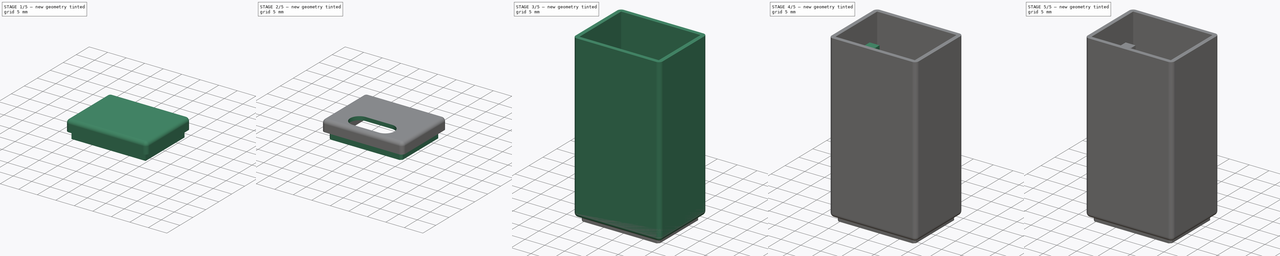
[diagram: build sequence overview — one tinted view per stage of 5, left to right]
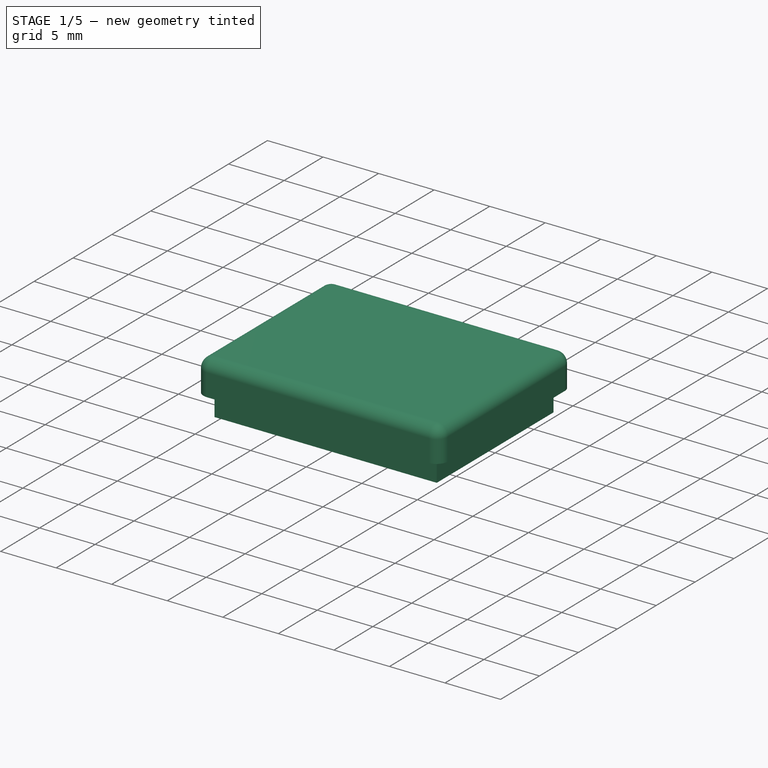
[diagram: stage 1 of 5 — iso view after this stage's code; geometry added in this stage tinted green]
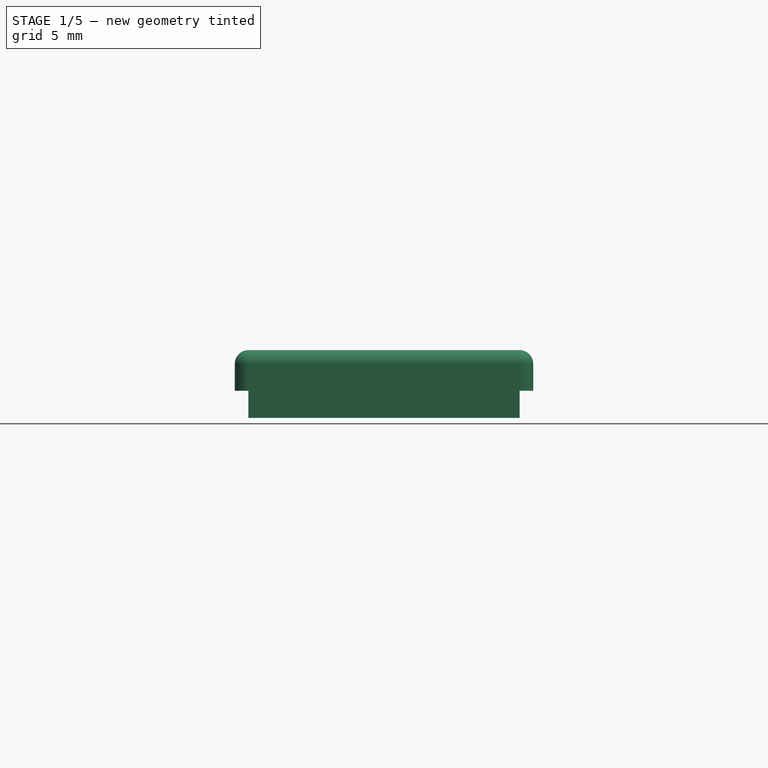
[diagram: stage 1 of 5 — front view after this stage's code; geometry added in this stage tinted green]
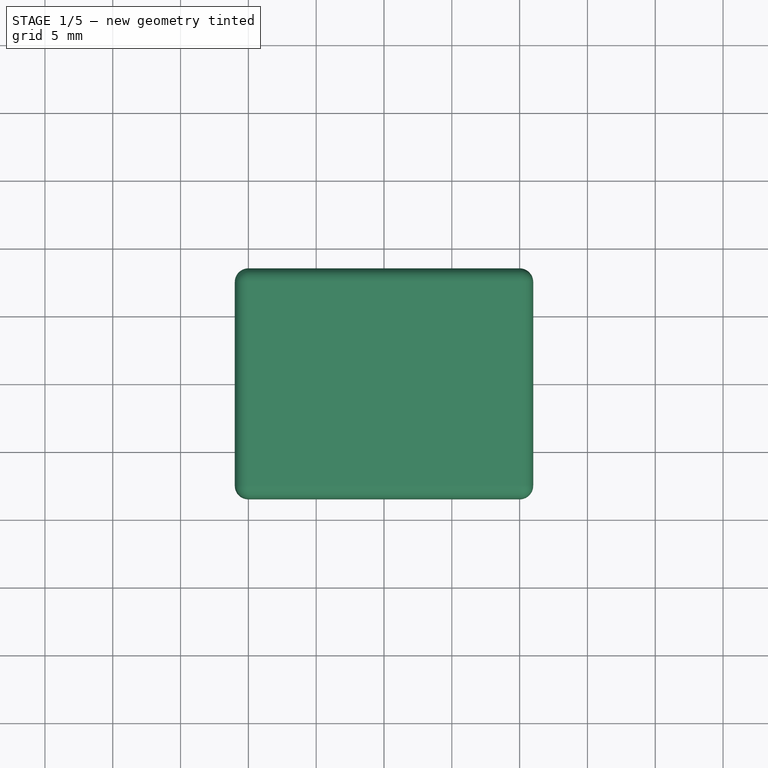
[diagram: stage 1 of 5 — top view after this stage's code; geometry added in this stage tinted green]
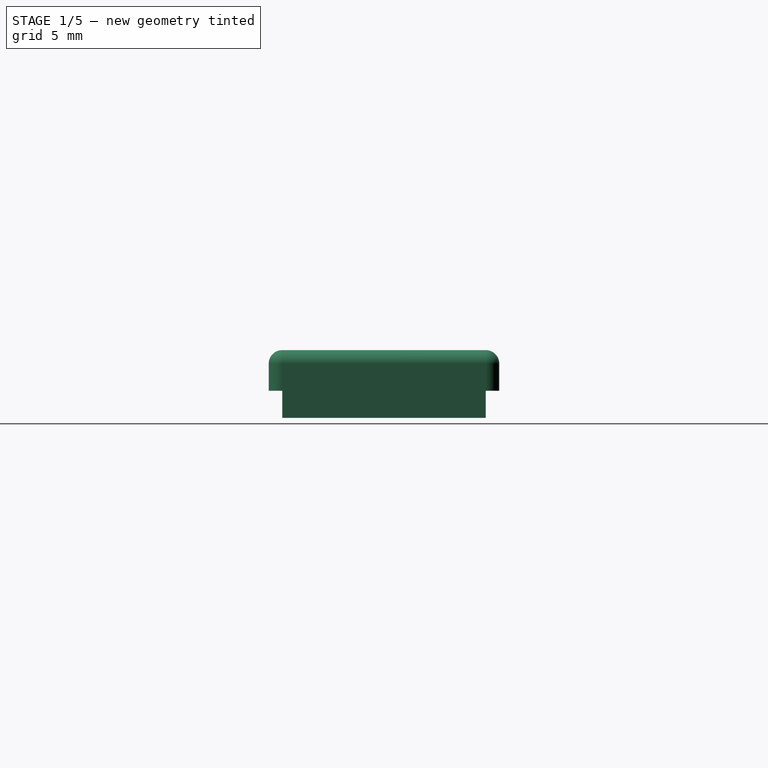
[diagram: stage 1 of 5 — right view after this stage's code; geometry added in this stage tinted green]
FCSTD DOCUMENT  (FreeCAD 0.19R24276 (Git))
Label: UartViaHC05_Boitier
License: All rights reserved
LicenseURL: http://en.wikipedia.org/wiki/All_rights_reserved
objects: Sketcher::SketchObject×10, PartDesign::Pad×8, PartDesign::Chamfer×3, PartDesign::Thickness×2, PartDesign::Pocket×2, PartDesign::Body×2
note: 42 computed .brp shape members not serialized (recipe doc carries the construction recipe); baked Part::Feature solids carry a one-line shape summary decoded from their .brp

FEATURE [Sketcher::SketchObject] Sketch004
  FullyConstrained = true
  MapMode = 5
  Support = -> [XY_Plane001]
  sketch-geometry (4):
    g0: LineSegment StartX=-10 StartY=7.5 StartZ=0 EndX=10 EndY=7.5 EndZ=0
    g1: LineSegment StartX=10 StartY=7.5 StartZ=0 EndX=10 EndY=-7.5 EndZ=0
    g2: LineSegment StartX=10 StartY=-7.5 StartZ=0 EndX=-10 EndY=-7.5 EndZ=0
    g3: LineSegment StartX=-10 StartY=-7.5 StartZ=0 EndX=-10 EndY=7.5 EndZ=0
  constraints (11):
    c: Coincident(g0,g1)
    c: Coincident(g1,g2)
    c: Coincident(g2,g3)
    c: Coincident(g3,g0)
    c: Horizontal(g0)
    c: Horizontal(g2)
    c: Vertical(g1)
    c: Vertical(g3)
    c: Symmetric(g1,g0,g-1)
    c: DistanceY(g1,g1) = 15
    c: DistanceX(g0,g0) = 20
FEATURE [PartDesign::Pad] Pad004
  Direction = (1,1,1)
  Length = 2
  Length2 = 100
  Profile = -> Sketch004
  Type = 0
FEATURE [PartDesign::Thickness] Thickness001
  Base = -> Pad004 [Face5]
  BaseFeature = -> Pad004
  Intersection = false
  Join = 0
  Mode = 0
  SupportTransform = false
  Value = 1
FEATURE [Sketcher::SketchObject] Sketch005
  ExternalGeometry = -> [Thickness001]
  FullyConstrained = true
  MapMode = 5
  Placement = pos=(0,0,2) rot=(1,0,0;3.14159rad)
  Support = -> [Thickness001]
  sketch-geometry (8):
    g0: LineSegment StartX=10 StartY=7.5 StartZ=0 EndX=-10 EndY=7.5 EndZ=0
    g1: LineSegment StartX=-10 StartY=7.5 StartZ=0 EndX=-10 EndY=-7.5 EndZ=0
    g2: LineSegment StartX=-10 StartY=-7.5 StartZ=0 EndX=10 EndY=-7.5 EndZ=0
    g3: LineSegment StartX=10 StartY=-7.5 StartZ=0 EndX=10 EndY=7.5 EndZ=0
    g4: LineSegment StartX=-9 StartY=-6.5 StartZ=0 EndX=9 EndY=-6.5 EndZ=0
    g5: LineSegment StartX=9 StartY=-6.5 StartZ=0 EndX=9 EndY=6.5 EndZ=0
    g6: LineSegment StartX=9 StartY=6.5 StartZ=0 EndX=-9 EndY=6.5 EndZ=0
    g7: LineSegment StartX=-9 StartY=6.5 StartZ=0 EndX=-9 EndY=-6.5 EndZ=0
  constraints (21):
    c: Coincident(g0,g1)
    c: Coincident(g1,g2)
    c: Coincident(g2,g3)
    c: Coincident(g3,g0)
    c: Horizontal(g0)
    c: Horizontal(g2)
    c: Vertical(g1)
    c: Vertical(g3)
    c: Coincident(g0,g-3)
    c: Coincident(g1,g-4)
    c: Coincident(g4,g5)
    c: Coincident(g5,g6)
    c: Coincident(g6,g7)
    c: Coincident(g7,g4)
    c: Horizontal(g4)
    c: Horizontal(g6)
    c: Vertical(g5)
    c: Vertical(g7)
    c: DistanceY(g5,g0) = 1
    c: DistanceX(g5,g0) = 1
    c: Symmetric(g5,g4,g-1)
FEATURE [PartDesign::Pad] Pad005
  BaseFeature = -> Thickness001
  Direction = (1,1,1)
  Length = 4
  Length2 = 100
  Profile = -> Sketch005
  Type = 0
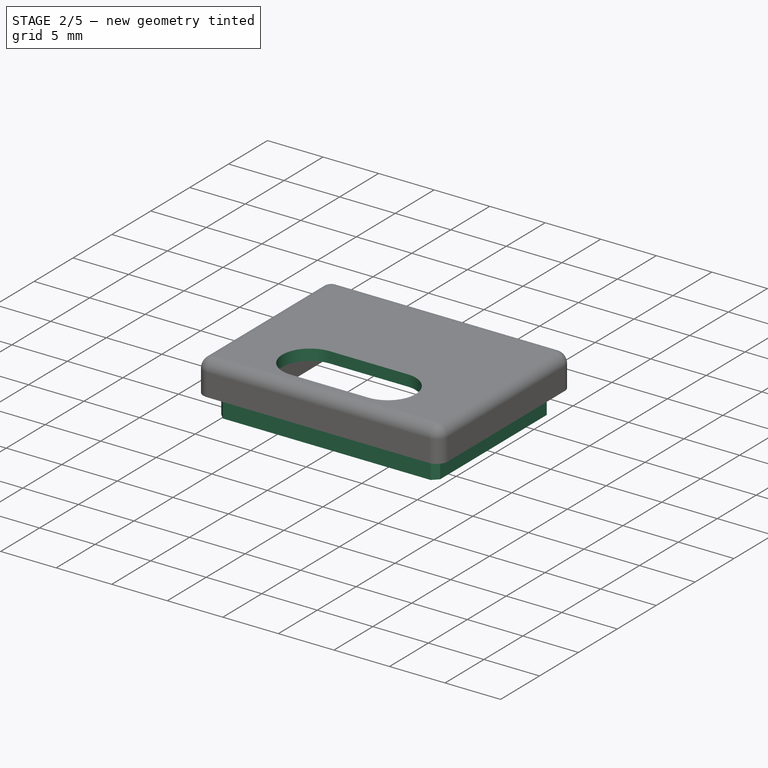
[diagram: stage 2 of 5 — iso view after this stage's code; geometry added in this stage tinted green]
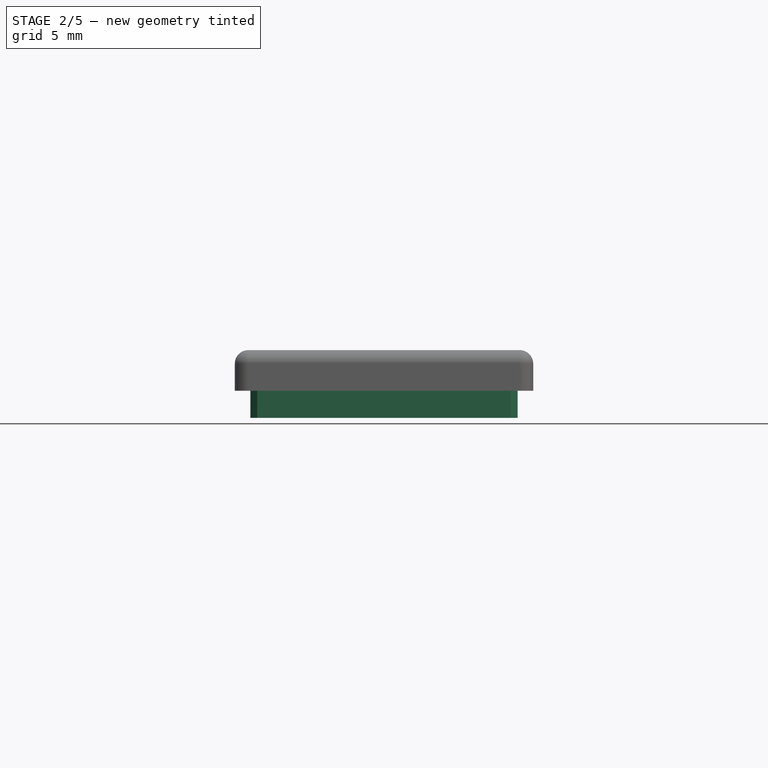
[diagram: stage 2 of 5 — front view after this stage's code; geometry added in this stage tinted green]
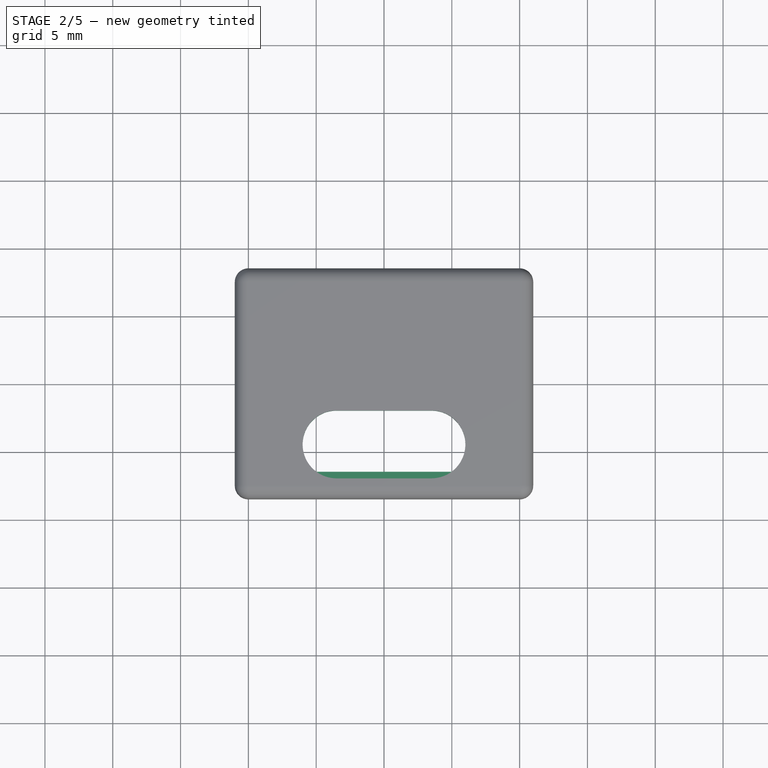
[diagram: stage 2 of 5 — top view after this stage's code; geometry added in this stage tinted green]
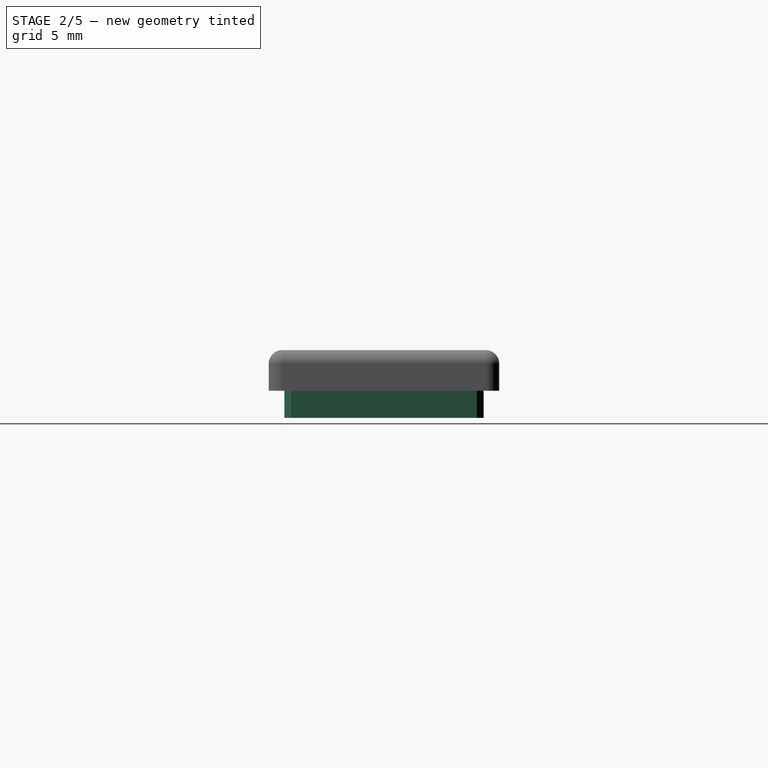
[diagram: stage 2 of 5 — right view after this stage's code; geometry added in this stage tinted green]
FEATURE [Sketcher::SketchObject] Sketch006
  ExternalGeometry = -> [Pad005]
  FullyConstrained = true
  MapMode = 5
  Placement = pos=(0,0,-2) rot=(1,0,0;3.14159rad)
  Support = -> [Pad005]
  sketch-geometry (8):
    g0: LineSegment StartX=10 StartY=7.5 StartZ=0 EndX=-10 EndY=7.5 EndZ=0
    g1: LineSegment StartX=-10 StartY=7.5 StartZ=0 EndX=-10 EndY=-7.5 EndZ=0
    g2: LineSegment StartX=-10 StartY=-7.5 StartZ=0 EndX=10 EndY=-7.5 EndZ=0
    g3: LineSegment StartX=10 StartY=-7.5 StartZ=0 EndX=10 EndY=7.5 EndZ=0
    g4: LineSegment StartX=-9.85 StartY=-7.35 StartZ=0 EndX=9.85 EndY=-7.35 EndZ=0
    g5: LineSegment StartX=9.85 StartY=-7.35 StartZ=0 EndX=9.85 EndY=7.35 EndZ=0
    g6: LineSegment StartX=9.85 StartY=7.35 StartZ=0 EndX=-9.85 EndY=7.35 EndZ=0
    g7: LineSegment StartX=-9.85 StartY=7.35 StartZ=0 EndX=-9.85 EndY=-7.35 EndZ=0
  constraints (21):
    c: Coincident(g0,g1)
    c: Coincident(g1,g2)
    c: Coincident(g2,g3)
    c: Coincident(g3,g0)
    c: Horizontal(g0)
    c: Horizontal(g2)
    c: Vertical(g1)
    c: Vertical(g3)
    c: Coincident(g0,g-3)
    c: Coincident(g1,g-4)
    c: Coincident(g4,g5)
    c: Coincident(g5,g6)
    c: Coincident(g6,g7)
    c: Coincident(g7,g4)
    c: Horizontal(g4)
    c: Horizontal(g6)
    c: Vertical(g5)
    c: Vertical(g7)
    c: DistanceX(g5,g0) = 0.15
    c: DistanceY(g5,g0) = 0.15
    c: Symmetric(g5,g4,g-1)
FEATURE [PartDesign::Pocket] Pocket
  BaseFeature = -> Pad005
  Length = 2
  Length2 = 100
  Profile = -> Sketch006
  Type = 0
FEATURE [PartDesign::Chamfer] Chamfer002
  Angle = 45
  Base = -> Pocket [Edge18,Edge17,Edge20,Edge22]
  BaseFeature = -> Pocket
  ChamferType = 0
  FlipDirection = false
  Size = 0.5
  Size2 = 1
  SupportTransform = false
FEATURE [PartDesign::Body] Body  label="corps"
  Group = -> [Sketch,Pad,Thickness,Sketch001,Pad001,Sketch002,Pad002,Sketch003,Pad003,Chamfer,Chamfer001,Sketch008,Pad006,Sketch009,Pad007]
  Origin = -> Origin
  Tip = -> Pad007
FEATURE [PartDesign::Pocket] Pocket001
  BaseFeature = -> Chamfer002
  Length = 5
  Length2 = 100
  Profile = -> Sketch007
  Type = 0
FEATURE [PartDesign::Body] Body001  label="couvercle"
  Group = -> [Sketch004,Pad004,Thickness001,Sketch005,Pad005,Sketch006,Pocket,Chamfer002,Sketch007,Pocket001]
  Origin = -> Origin001
  Placement = pos=(0,0,43) rot=(0,0,1;0rad)
  Tip = -> Pocket001
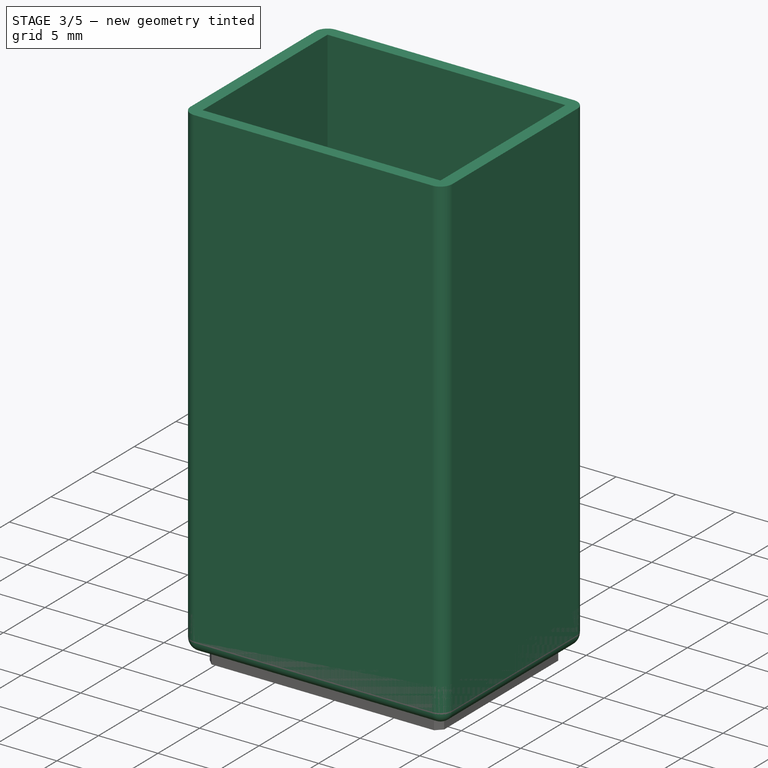
[diagram: stage 3 of 5 — iso view after this stage's code; geometry added in this stage tinted green]
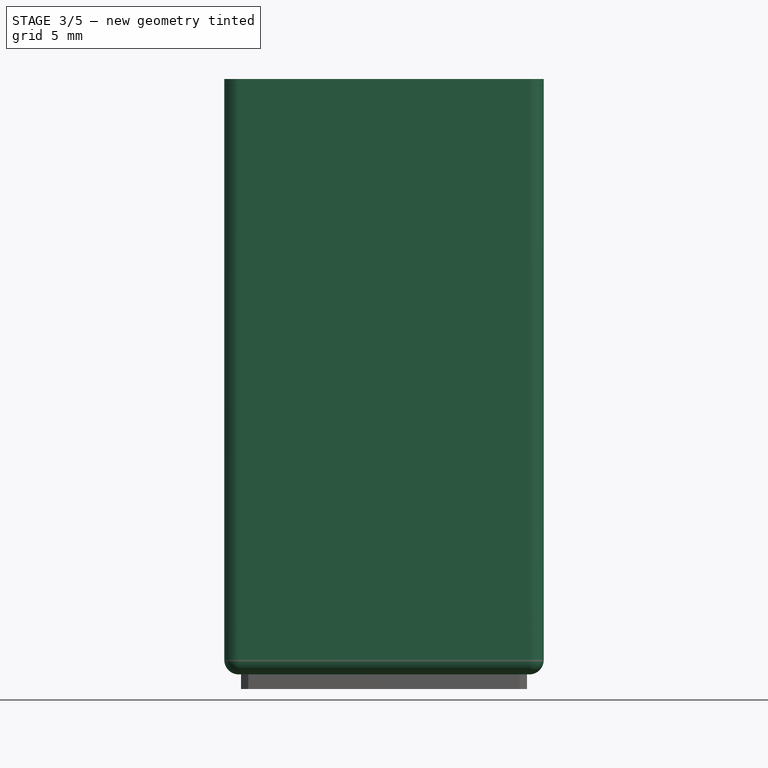
[diagram: stage 3 of 5 — front view after this stage's code; geometry added in this stage tinted green]
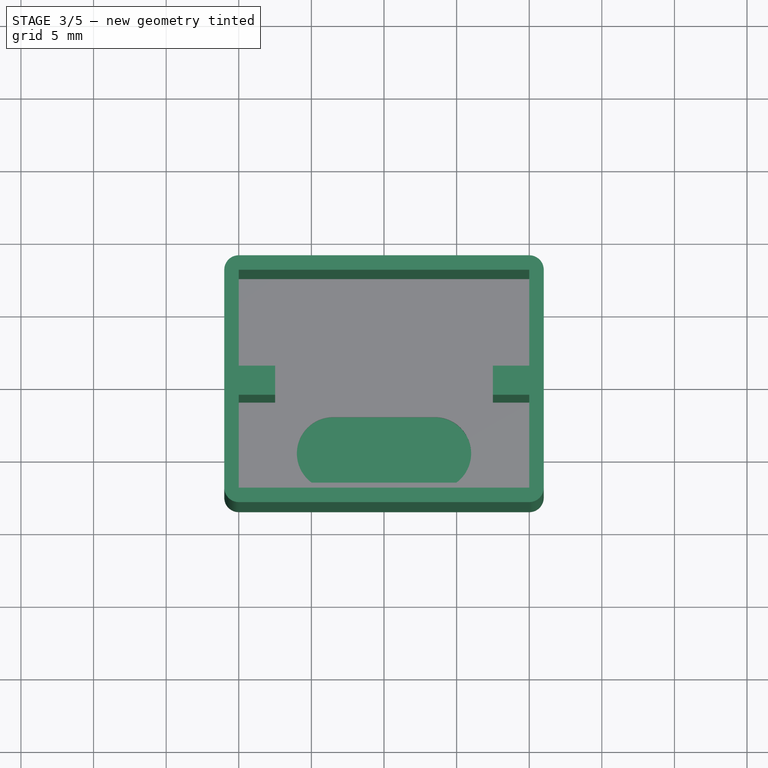
[diagram: stage 3 of 5 — top view after this stage's code; geometry added in this stage tinted green]
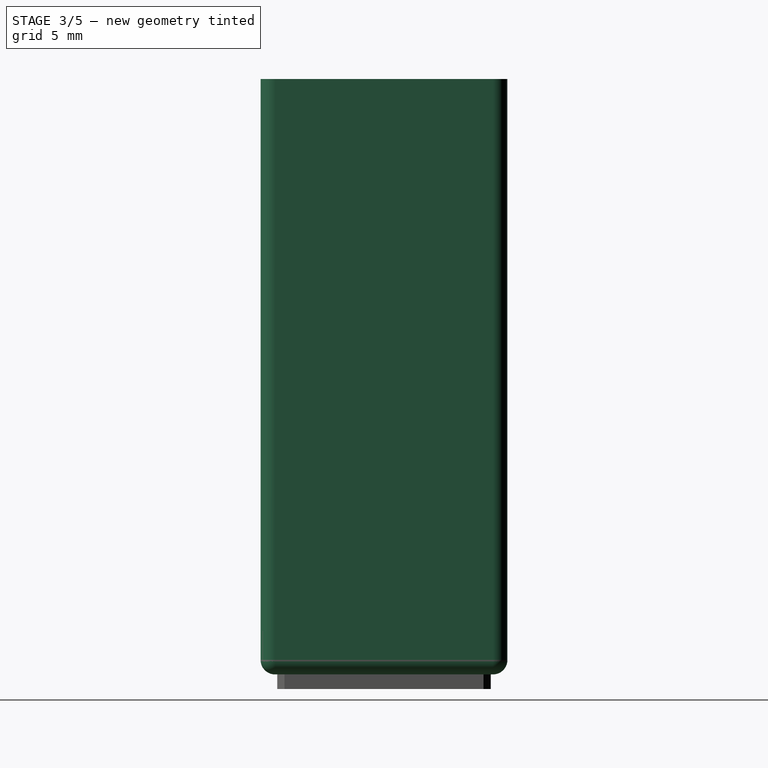
[diagram: stage 3 of 5 — right view after this stage's code; geometry added in this stage tinted green]
FEATURE [Sketcher::SketchObject] Sketch
  FullyConstrained = true
  MapMode = 5
  Support = -> [XY_Plane]
  sketch-geometry (4):
    g0: LineSegment StartX=-10 StartY=7.5 StartZ=0 EndX=10 EndY=7.5 EndZ=0
    g1: LineSegment StartX=10 StartY=7.5 StartZ=0 EndX=10 EndY=-7.5 EndZ=0
    g2: LineSegment StartX=10 StartY=-7.5 StartZ=0 EndX=-10 EndY=-7.5 EndZ=0
    g3: LineSegment StartX=-10 StartY=-7.5 StartZ=0 EndX=-10 EndY=7.5 EndZ=0
  constraints (11):
    c: Coincident(g0,g1)
    c: Coincident(g1,g2)
    c: Coincident(g2,g3)
    c: Coincident(g3,g0)
    c: Horizontal(g0)
    c: Horizontal(g2)
    c: Vertical(g1)
    c: Vertical(g3)
    c: Symmetric(g0,g2,g-1)
    c: DistanceX(g0,g0) = 20
    c: DistanceY(g1,g1) = 15
FEATURE [PartDesign::Pad] Pad
  Direction = (1,1,1)
  Length = 40
  Length2 = 100
  Profile = -> Sketch
  Type = 0
FEATURE [PartDesign::Thickness] Thickness
  Base = -> Pad [Face6]
  BaseFeature = -> Pad
  Intersection = false
  Join = 0
  Mode = 0
  SupportTransform = false
  Value = 1
FEATURE [Sketcher::SketchObject] Sketch001
  FullyConstrained = true
  MapMode = 5
  Support = -> [Thickness]
  sketch-geometry (8):
    g0: LineSegment StartX=-7.5 StartY=1 StartZ=0 EndX=-10 EndY=1 EndZ=0
    g1: LineSegment StartX=-10 StartY=1 StartZ=0 EndX=-10 EndY=-1 EndZ=0
    g2: LineSegment StartX=-10 StartY=-1 StartZ=0 EndX=-7.5 EndY=-1 EndZ=0
    g3: LineSegment StartX=-7.5 StartY=-1 StartZ=0 EndX=-7.5 EndY=1 EndZ=0
    g4: LineSegment StartX=7.5 StartY=1 StartZ=0 EndX=10 EndY=1 EndZ=0
    g5: LineSegment StartX=10 StartY=1 StartZ=0 EndX=10 EndY=-1 EndZ=0
    g6: LineSegment StartX=10 StartY=-1 StartZ=0 EndX=7.5 EndY=-1 EndZ=0
    g7: LineSegment StartX=7.5 StartY=-1 StartZ=0 EndX=7.5 EndY=1 EndZ=0
  constraints (21):
    c: Coincident(g0,g1)
    c: Coincident(g1,g2)
    c: Coincident(g2,g3)
    c: Coincident(g3,g0)
    c: Horizontal(g0)
    c: Horizontal(g2)
    c: Vertical(g3)
    c: Symmetric(g0,g1,g-1)
    c: Coincident(g4,g5)
    c: Coincident(g5,g6)
    c: Coincident(g6,g7)
    c: Coincident(g7,g4)
    c: Horizontal(g4)
    c: Horizontal(g6)
    c: Vertical(g7)
    c: Symmetric(g5,g4,g-1)
    c: Equal(g4,g0)
    c: Symmetric(g0,g4,g-2)
    c: DistanceX(g0,g4) = 20
    c: DistanceX(g0,g4) = 15
    c: DistanceY(g7,g7) = 2
FEATURE [PartDesign::Pad] Pad001
  BaseFeature = -> Thickness
  Direction = (1,1,1)
  Length = 34
  Length2 = 100
  Profile = -> Sketch001
  Type = 0
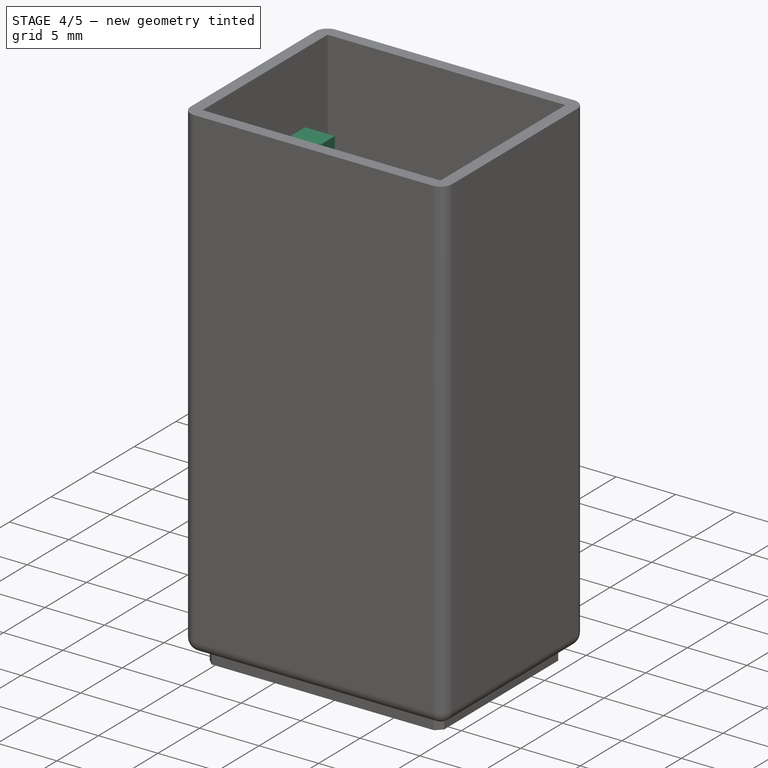
[diagram: stage 4 of 5 — iso view after this stage's code; geometry added in this stage tinted green]
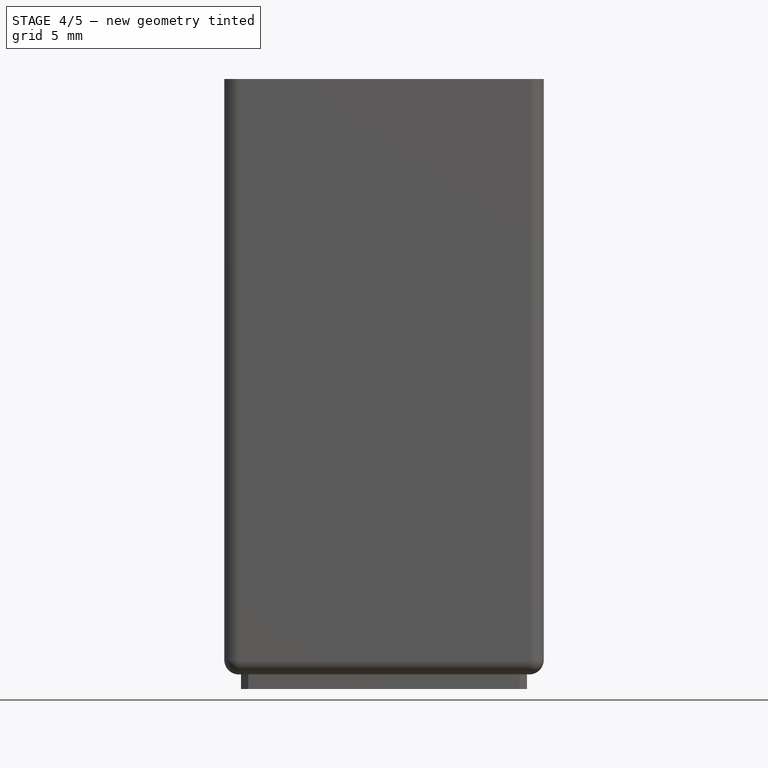
[diagram: stage 4 of 5 — front view after this stage's code; geometry added in this stage tinted green]
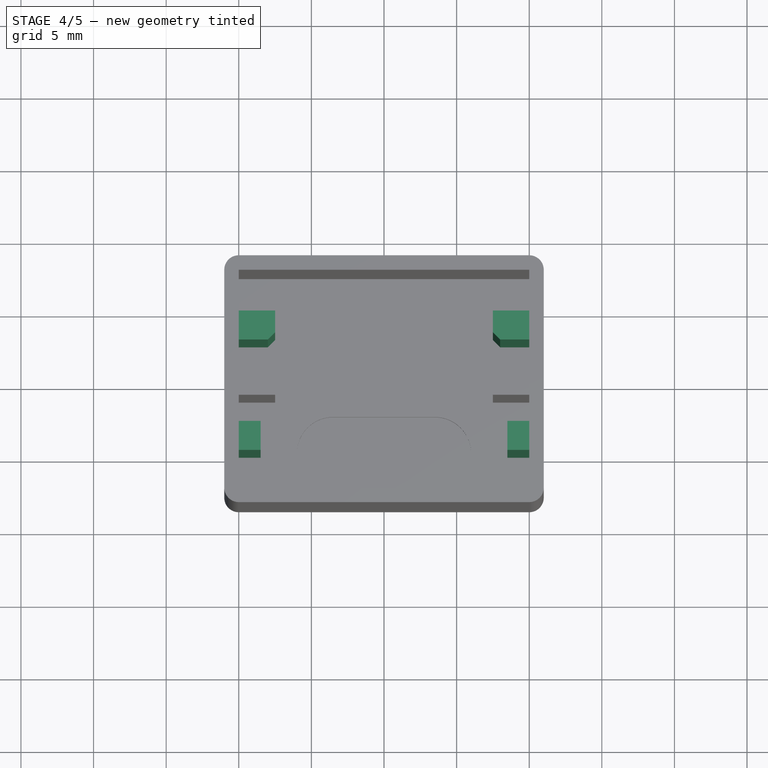
[diagram: stage 4 of 5 — top view after this stage's code; geometry added in this stage tinted green]
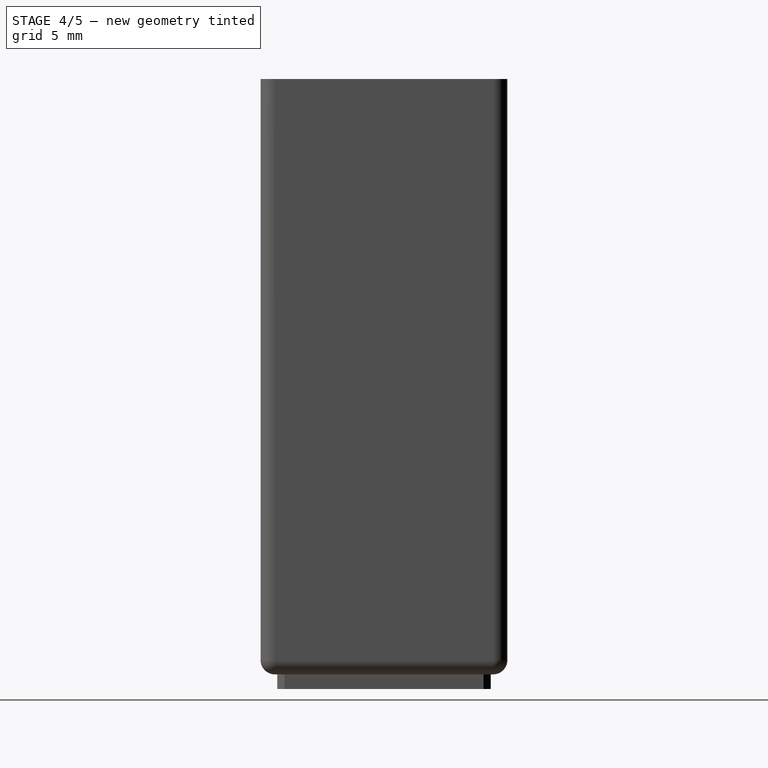
[diagram: stage 4 of 5 — right view after this stage's code; geometry added in this stage tinted green]
FEATURE [Sketcher::SketchObject] Sketch002
  ExternalGeometry = -> [Pad001]
  FullyConstrained = true
  MapMode = 5
  Support = -> [Pad001]
  sketch-geometry (8):
    g0: LineSegment StartX=-10 StartY=4.8 StartZ=0 EndX=-7.5 EndY=4.8 EndZ=0
    g1: LineSegment StartX=-7.5 StartY=4.8 StartZ=0 EndX=-7.5 EndY=2.8 EndZ=0
    g2: LineSegment StartX=-7.5 StartY=2.8 StartZ=0 EndX=-10 EndY=2.8 EndZ=0
    g3: LineSegment StartX=-10 StartY=2.8 StartZ=0 EndX=-10 EndY=4.8 EndZ=0
    g4: LineSegment StartX=7.5 StartY=4.8 StartZ=0 EndX=10 EndY=4.8 EndZ=0
    g5: LineSegment StartX=10 StartY=4.8 StartZ=0 EndX=10 EndY=2.8 EndZ=0
    g6: LineSegment StartX=10 StartY=2.8 StartZ=0 EndX=7.5 EndY=2.8 EndZ=0
    g7: LineSegment StartX=7.5 StartY=2.8 StartZ=0 EndX=7.5 EndY=4.8 EndZ=0
  constraints (23):
    c: Coincident(g0,g1)
    c: Coincident(g1,g2)
    c: Coincident(g2,g3)
    c: Coincident(g3,g0)
    c: Horizontal(g0)
    c: Horizontal(g2)
    c: Vertical(g1)
    c: Vertical(g3)
    c: Coincident(g4,g5)
    c: Coincident(g5,g6)
    c: Coincident(g6,g7)
    c: Coincident(g7,g4)
    c: Horizontal(g4)
    c: Horizontal(g6)
    c: Vertical(g5)
    c: Vertical(g7)
    c: Symmetric(g6,g1,g-2)
    c: Equal(g6,g2)
    c: Equal(g1,g7)
    c: DistanceX(g1,g6) = 15
    c: DistanceY(g-3,g6) = 1.8
    c: DistanceX(g2,g5) = 20
    c: DistanceY(g1,g1) = 2
FEATURE [PartDesign::Pad] Pad002
  BaseFeature = -> Pad001
  Direction = (1,1,1)
  Length = 34
  Length2 = 100
  Profile = -> Sketch002
  Type = 0
FEATURE [Sketcher::SketchObject] Sketch003
  ExternalGeometry = -> [Pad002]
  FullyConstrained = true
  MapMode = 5
  Support = -> [Pad002]
  sketch-geometry (8):
    g0: LineSegment StartX=8.5 StartY=-2.8 StartZ=0 EndX=10 EndY=-2.8 EndZ=0
    g1: LineSegment StartX=10 StartY=-2.8 StartZ=0 EndX=10 EndY=-4.8 EndZ=0
    g2: LineSegment StartX=10 StartY=-4.8 StartZ=0 EndX=8.5 EndY=-4.8 EndZ=0
    g3: LineSegment StartX=8.5 StartY=-4.8 StartZ=0 EndX=8.5 EndY=-2.8 EndZ=0
    g4: LineSegment StartX=-10 StartY=-2.8 StartZ=0 EndX=-8.5 EndY=-2.8 EndZ=0
    g5: LineSegment StartX=-8.5 StartY=-2.8 StartZ=0 EndX=-8.5 EndY=-4.8 EndZ=0
    g6: LineSegment StartX=-8.5 StartY=-4.8 StartZ=0 EndX=-10 EndY=-4.8 EndZ=0
    g7: LineSegment StartX=-10 StartY=-4.8 StartZ=0 EndX=-10 EndY=-2.8 EndZ=0
  constraints (23):
    c: Coincident(g0,g1)
    c: Coincident(g1,g2)
    c: Coincident(g2,g3)
    c: Coincident(g3,g0)
    c: Horizontal(g0)
    c: Horizontal(g2)
    c: Vertical(g1)
    c: Vertical(g3)
    c: Coincident(g4,g5)
    c: Coincident(g5,g6)
    c: Coincident(g6,g7)
    c: Coincident(g7,g4)
    c: Horizontal(g4)
    c: Horizontal(g6)
    c: Vertical(g5)
    c: Vertical(g7)
    c: Equal(g5,g3)
    c: Symmetric(g0,g4,g-2)
    c: Equal(g4,g0)
    c: DistanceX(g4,g0) = 20
    c: DistanceX(g4,g0) = 17
    c: DistanceY(g0,g-3) = 1.8
    c: DistanceY(g3,g3) = 2
FEATURE [PartDesign::Pad] Pad003
  BaseFeature = -> Pad002
  Direction = (1,1,1)
  Length = 34
  Length2 = 100
  Profile = -> Sketch003
  Type = 0
FEATURE [PartDesign::Chamfer] Chamfer
  Angle = 45
  Base = -> Pad003 [Edge73,Edge82,Edge83,Edge72]
  BaseFeature = -> Pad003
  ChamferType = 0
  FlipDirection = false
  Size = 0.5
  Size2 = 1
  SupportTransform = false
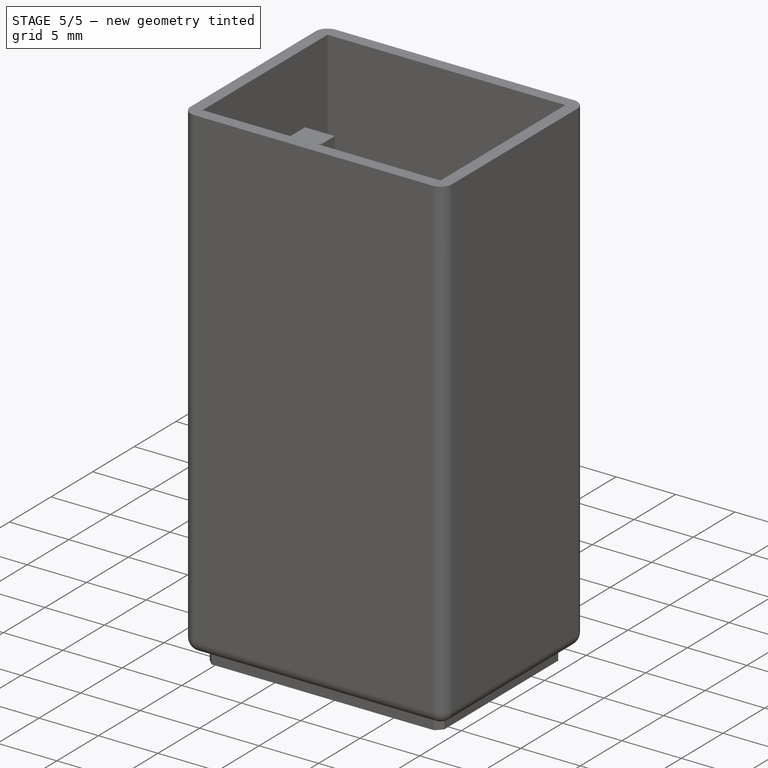
[diagram: stage 5 of 5 — iso view after this stage's code; geometry added in this stage tinted green]
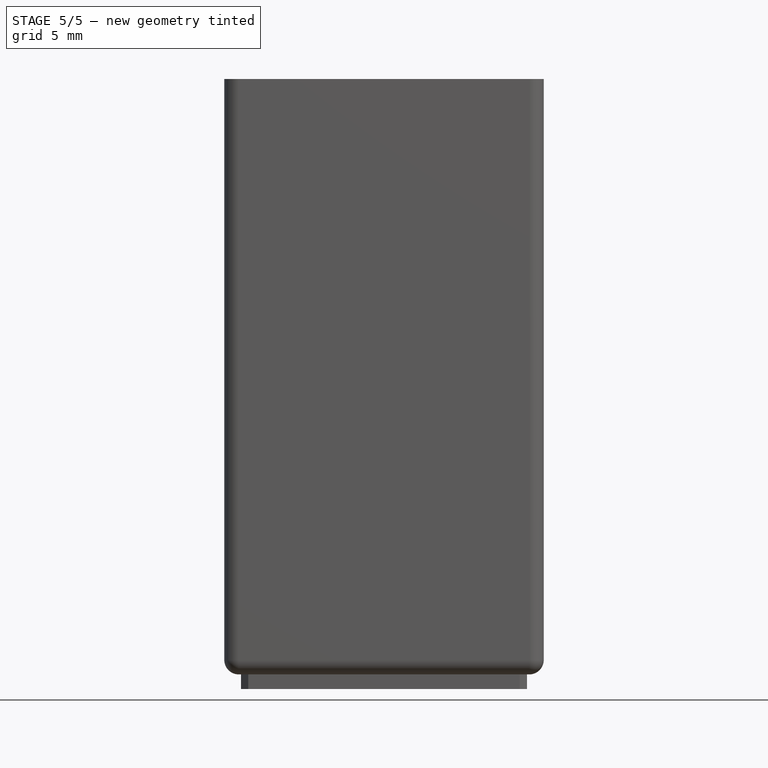
[diagram: stage 5 of 5 — front view after this stage's code; geometry added in this stage tinted green]
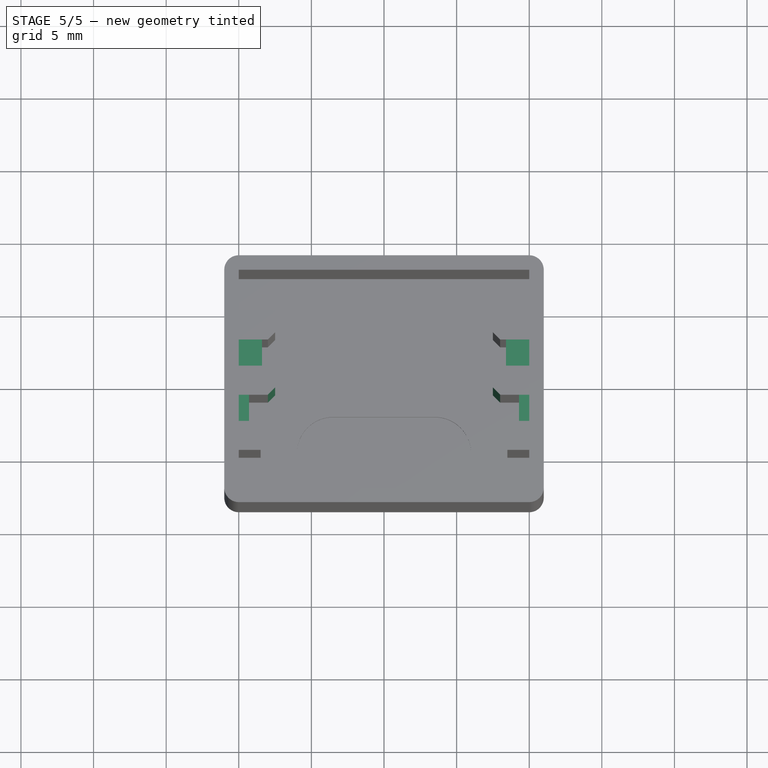
[diagram: stage 5 of 5 — top view after this stage's code; geometry added in this stage tinted green]
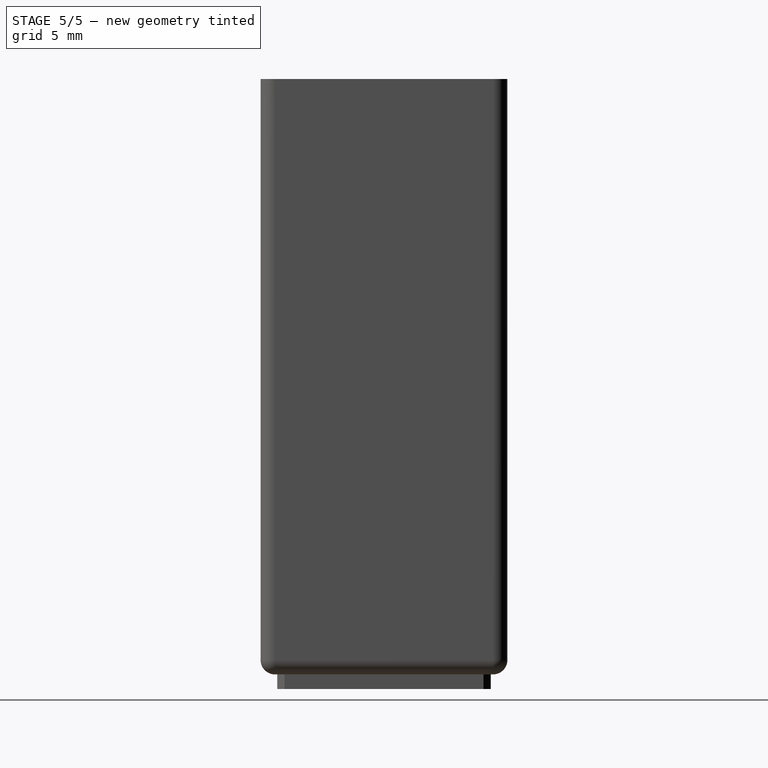
[diagram: stage 5 of 5 — right view after this stage's code; geometry added in this stage tinted green]
FEATURE [PartDesign::Chamfer] Chamfer001
  Angle = 45
  Base = -> Chamfer [Edge34,Edge89]
  BaseFeature = -> Chamfer
  ChamferType = 0
  FlipDirection = false
  Size = 0.5
  Size2 = 1
  SupportTransform = false
FEATURE [Sketcher::SketchObject] Sketch007
  FullyConstrained = true
  MapMode = 5
  Placement = pos=(0,0,2) rot=(1,0,0;3.14159rad)
  Support = -> [Chamfer002]
  expr: Constraints[8] = 3.5 + 1
  sketch-geometry (4):
    g0: ArcOfCircle CenterX=-3.5 CenterY=4.5 CenterZ=0 NormalX=0 NormalY=0 NormalZ=1 AngleXU=0 Radius=2.5 StartAngle=1.5708 EndAngle=4.71239
    g1: ArcOfCircle CenterX=3.5 CenterY=4.5 CenterZ=0 NormalX=0 NormalY=0 NormalZ=1 AngleXU=0 Radius=2.5 StartAngle=4.71239 EndAngle=7.85398
    g2: LineSegment StartX=-3.5 StartY=2 StartZ=0 EndX=3.5 EndY=2 EndZ=0
    g3: LineSegment StartX=-3.5 StartY=7 StartZ=0 EndX=3.5 EndY=7 EndZ=0
  constraints (9):
    c: Tangent(g0,g3) = 1.5708
    c: Tangent(g0,g2) = -1.5708
    c: Tangent(g2,g1) = -1.5708
    c: Tangent(g3,g1) = 1.5708
    c: Horizontal(g2)
    c: Symmetric(g1,g0,g-2)
    c: DistanceX(g0,g1) = 7
    c: Radius(g1) = 2.5
    c: DistanceY(g-1,g0) = 4.5
FEATURE [Sketcher::SketchObject] Sketch008
  ExternalGeometry = -> [Chamfer001]
  FullyConstrained = true
  MapMode = 5
  Support = -> [Chamfer001]
  sketch-geometry (8):
    g0: LineSegment StartX=10 StartY=2.8 StartZ=0 EndX=8.4 EndY=2.8 EndZ=0
    g1: LineSegment StartX=8.4 StartY=2.8 StartZ=0 EndX=8.4 EndY=1 EndZ=0
    g2: LineSegment StartX=8.4 StartY=1 StartZ=0 EndX=10 EndY=1 EndZ=0
    g3: LineSegment StartX=10 StartY=1 StartZ=0 EndX=10 EndY=2.8 EndZ=0
    g4: LineSegment StartX=-10 StartY=2.8 StartZ=0 EndX=-8.4 EndY=2.8 EndZ=0
    g5: LineSegment StartX=-8.4 StartY=2.8 StartZ=0 EndX=-8.4 EndY=1 EndZ=0
    g6: LineSegment StartX=-8.4 StartY=1 StartZ=0 EndX=-10 EndY=1 EndZ=0
    g7: LineSegment StartX=-10 StartY=1 StartZ=0 EndX=-10 EndY=2.8 EndZ=0
  constraints (22):
    c: Coincident(g0,g1)
    c: Coincident(g1,g2)
    c: Coincident(g2,g3)
    c: Coincident(g3,g0)
    c: Horizontal(g0)
    c: Horizontal(g2)
    c: Vertical(g1)
    c: Vertical(g3)
    c: Coincident(g0,g-3)
    c: Coincident(g4,g5)
    c: Coincident(g5,g6)
    c: Coincident(g6,g7)
    c: Coincident(g7,g4)
    c: Horizontal(g4)
    c: Horizontal(g6)
    c: Vertical(g5)
    c: Vertical(g7)
    c: Coincident(g4,g-4)
    c: Equal(g6,g2)
    c: DistanceX(g5,g1) = 16.8
    c: DistanceY(g5,g5) = 1.8
    c: Equal(g1,g5)
FEATURE [PartDesign::Pad] Pad006
  BaseFeature = -> Chamfer001
  Direction = (1,1,1)
  Length = 34
  Length2 = 100
  Profile = -> Sketch008
  Type = 0
FEATURE [Sketcher::SketchObject] Sketch009
  ExternalGeometry = -> [Pad006]
  FullyConstrained = true
  MapMode = 5
  Support = -> [Pad006]
  sketch-geometry (8):
    g0: LineSegment StartX=10 StartY=-1 StartZ=0 EndX=9.3 EndY=-1 EndZ=0
    g1: LineSegment StartX=9.3 StartY=-1 StartZ=0 EndX=9.3 EndY=-2.8 EndZ=0
    g2: LineSegment StartX=9.3 StartY=-2.8 StartZ=0 EndX=10 EndY=-2.8 EndZ=0
    g3: LineSegment StartX=10 StartY=-2.8 StartZ=0 EndX=10 EndY=-1 EndZ=0
    g4: LineSegment StartX=-10 StartY=-1 StartZ=0 EndX=-9.3 EndY=-1 EndZ=0
    g5: LineSegment StartX=-9.3 StartY=-1 StartZ=0 EndX=-9.3 EndY=-2.8 EndZ=0
    g6: LineSegment StartX=-9.3 StartY=-2.8 StartZ=0 EndX=-10 EndY=-2.8 EndZ=0
    g7: LineSegment StartX=-10 StartY=-2.8 StartZ=0 EndX=-10 EndY=-1 EndZ=0
  constraints (22):
    c: Coincident(g0,g1)
    c: Coincident(g1,g2)
    c: Coincident(g2,g3)
    c: Coincident(g3,g0)
    c: Horizontal(g0)
    c: Horizontal(g2)
    c: Vertical(g1)
    c: Vertical(g3)
    c: Coincident(g0,g-3)
    c: Coincident(g4,g5)
    c: Coincident(g5,g6)
    c: Coincident(g6,g7)
    c: Coincident(g7,g4)
    c: Horizontal(g4)
    c: Horizontal(g6)
    c: Vertical(g5)
    c: Vertical(g7)
    c: Symmetric(g4,g0,g-2)
    c: Equal(g6,g2)
    c: Equal(g1,g5)
    c: DistanceY(g1,g1) = 1.8
    c: DistanceX(g5,g1) = 18.6
FEATURE [PartDesign::Pad] Pad007
  BaseFeature = -> Pad006
  Direction = (1,1,1)
  Length = 34
  Length2 = 100
  Profile = -> Sketch009
  Type = 0
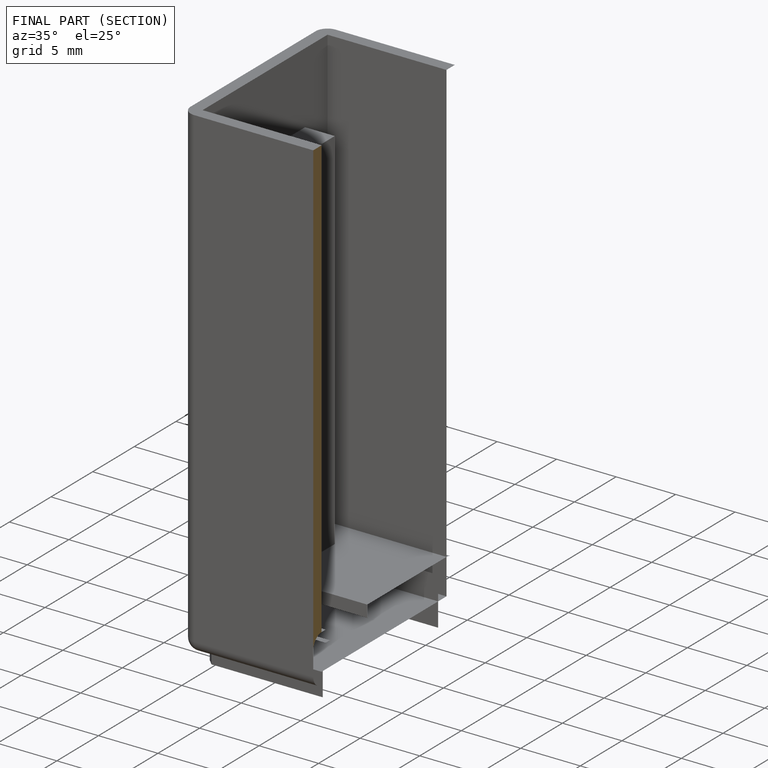
[diagram: finished part — half-section view (interior)]
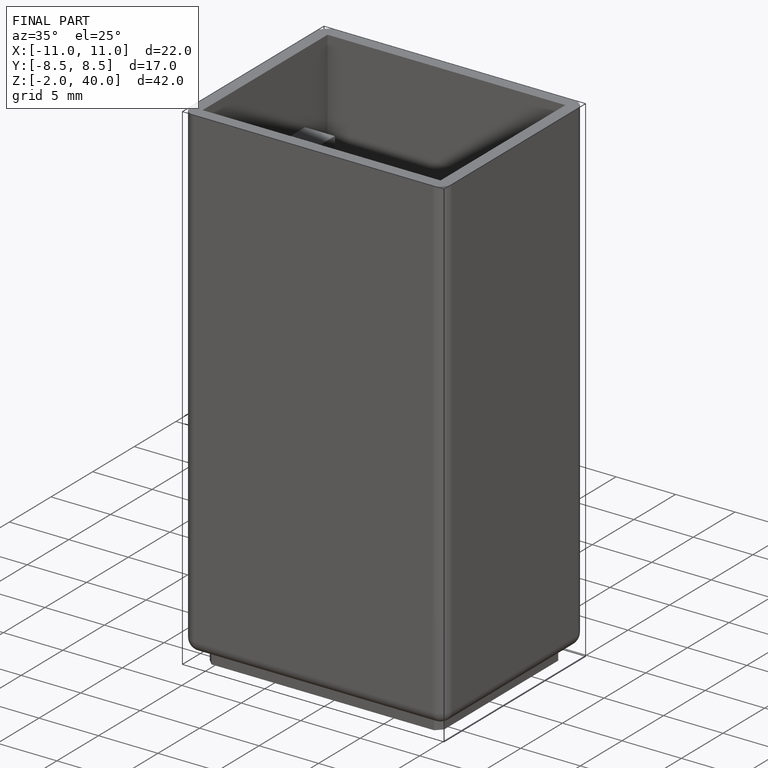
[diagram: finished part — iso view with bounding-box wireframe]
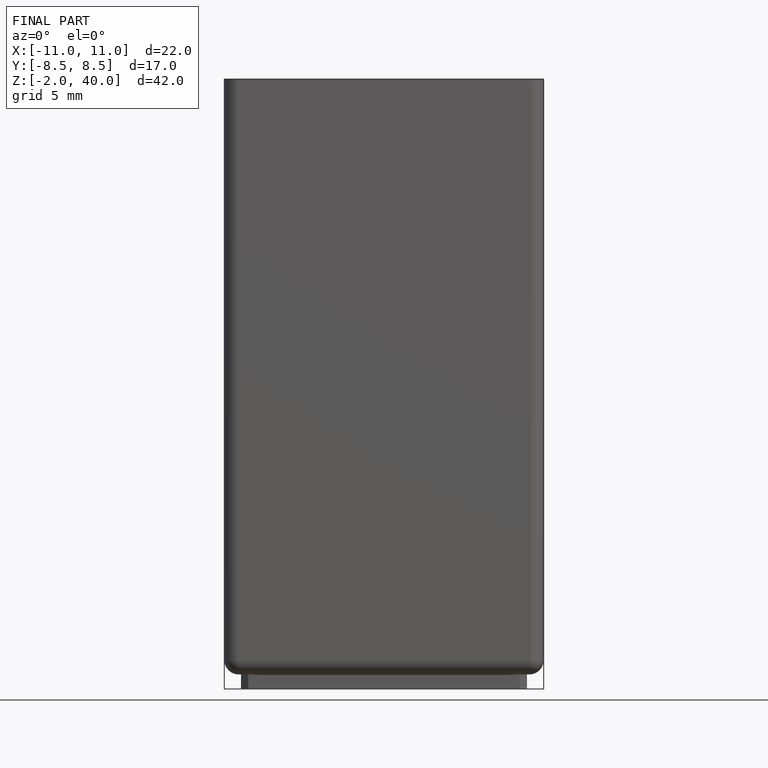
[diagram: finished part — front view with bounding-box wireframe]
